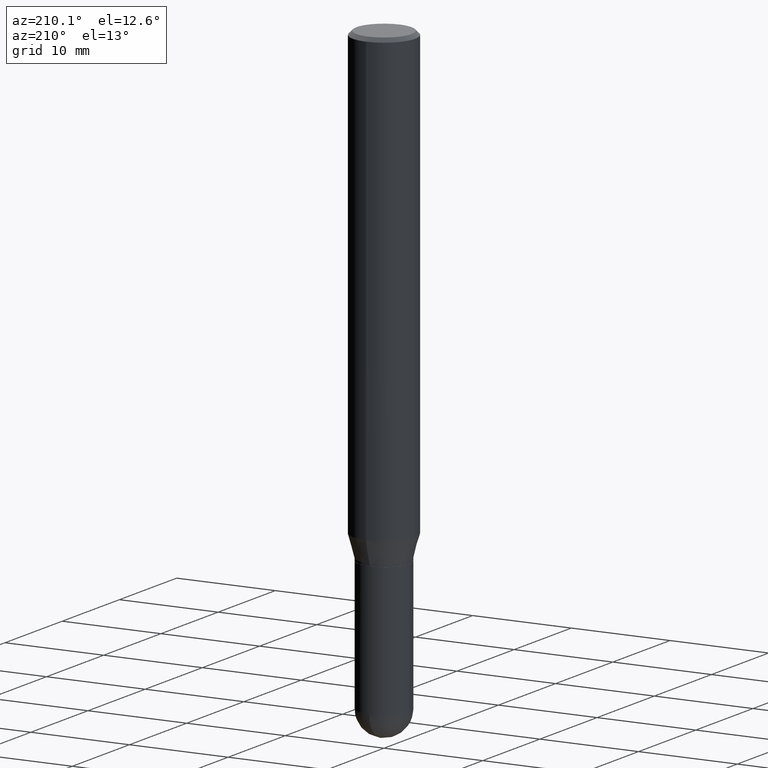
[diagram: clean part render]
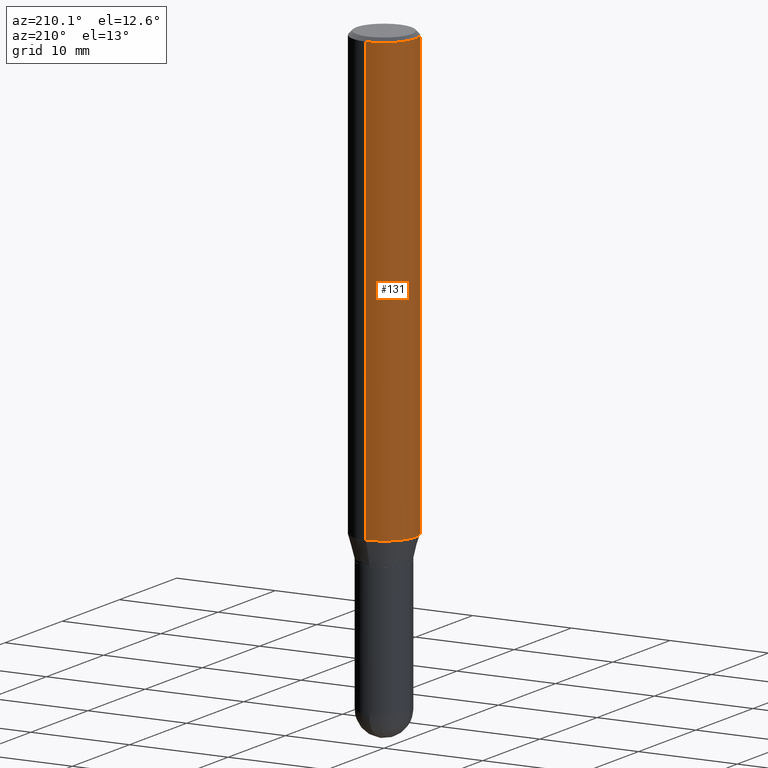
[diagram: same view with one face highlighted and labeled with its STEP entity id]
A machine part, auxiliary view. The second image highlights one B-rep face of the part: STEP entity #131.
In plain terms, the highlighted cylindrical surface (edge-blend (fillet) strip) has radius 3.175 mm, axis along (-0, 0, 1).
Its self-contained STEP definition (entity closure, byte-faithful):
#12 = LINE ( 'NONE', #492, #318 ) ;
#34 = VERTEX_POINT ( 'NONE', #138 ) ;
#38 = VERTEX_POINT ( 'NONE', #451 ) ;
#50 = ORIENTED_EDGE ( 'NONE', *, *, #500, .T. ) ;
#55 = ORIENTED_EDGE ( 'NONE', *, *, #193, .F. ) ;
#61 = AXIS2_PLACEMENT_3D ( 'NONE', #420, #303, #456 ) ;
#70 = CARTESIAN_POINT ( 'NONE',  ( 8.881784197001684225E-16, 0.1249999999999937828, -1.777483408562510858 ) ) ;
#90 = DIRECTION ( 'NONE',  ( -2.445288491507693836E-29, 3.491739559724117490E-15, 1.000000000000000000 ) ) ;
#101 = CARTESIAN_POINT ( 'NONE',  ( 4.346459722803774281E-29, -6.206509134430983691E-15, -1.777483408562510192 ) ) ;
#103 = AXIS2_PLACEMENT_3D ( 'NONE', #101, #90, #184 ) ;
#114 = LINE ( 'NONE', #156, #457 ) ;
#131 = ADVANCED_FACE ( 'NONE', ( #465 ), #346, .T. ) ;
#138 = CARTESIAN_POINT ( 'NONE',  ( 8.881784197001688169E-16, 0.1249999999999999306, -0.01500000000000036027 ) ) ;
#156 = CARTESIAN_POINT ( 'NONE',  ( 8.881784197001251337E-16, 0.1250000000000000000, -4.364674449655146862E-16 ) ) ;
#161 = VERTEX_POINT ( 'NONE', #70 ) ;
#184 = DIRECTION ( 'NONE',  ( -6.982962677686265922E-15, -1.000000000000000000, 4.370956789862821150E-15 ) ) ;
#193 = EDGE_CURVE ( 'NONE', #34, #436, #504, .T. ) ;
#220 = EDGE_CURVE ( 'NONE', #161, #34, #114, .T. ) ;
#250 = ORIENTED_EDGE ( 'NONE', *, *, #220, .F. ) ;
#257 = DIRECTION ( 'NONE',  ( -2.445288491507693556E-29, 3.491739559724117490E-15, 1.000000000000000000 ) ) ;
#261 = DIRECTION ( 'NONE',  ( -6.982962677686265922E-15, -1.000000000000000000, 3.491739559724117490E-15 ) ) ;
#283 = EDGE_LOOP ( 'NONE', ( #250, #330, #50, #55 ) ) ;
#303 = DIRECTION ( 'NONE',  ( -2.445288491507693836E-29, 3.491739559724117490E-15, 1.000000000000000000 ) ) ;
#318 = VECTOR ( 'NONE', #257, 39.37007874015748143 ) ;
#327 = CIRCLE ( 'NONE', #103, 0.1250000000000000000 ) ;
#330 = ORIENTED_EDGE ( 'NONE', *, *, #444, .T. ) ;
#346 = CYLINDRICAL_SURFACE ( 'NONE', #432, 0.1250000000000000000 ) ;
#397 = DIRECTION ( 'NONE',  ( -2.445288491507693556E-29, 3.491739559724117490E-15, 1.000000000000000000 ) ) ;
#420 = CARTESIAN_POINT ( 'NONE',  ( 3.667932737261522064E-31, -5.237609339586149413E-17, -0.01499999999999992312 ) ) ;
#428 = CARTESIAN_POINT ( 'NONE',  ( 0.000000000000000000, 0.000000000000000000, 0.000000000000000000 ) ) ;
#432 = AXIS2_PLACEMENT_3D ( 'NONE', #428, #501, #261 ) ;
#436 = VERTEX_POINT ( 'NONE', #490 ) ;
#444 = EDGE_CURVE ( 'NONE', #161, #38, #327, .T. ) ;
#451 = CARTESIAN_POINT ( 'NONE',  ( -8.728703347107400501E-16, -0.1250000000000062172, -1.777483408562509748 ) ) ;
#456 = DIRECTION ( 'NONE',  ( -6.982962677686265922E-15, -1.000000000000000000, 3.500180241882337261E-15 ) ) ;
#457 = VECTOR ( 'NONE', #397, 39.37007874015748143 ) ;
#465 = FACE_OUTER_BOUND ( 'NONE', #283, .T. ) ;
#490 = CARTESIAN_POINT ( 'NONE',  ( -8.728703347107828458E-16, -0.1250000000000000555, -0.01499999999999948597 ) ) ;
#492 = CARTESIAN_POINT ( 'NONE',  ( -8.728703347107832402E-16, -0.1250000000000000000, 4.364674449655146862E-16 ) ) ;
#500 = EDGE_CURVE ( 'NONE', #38, #436, #12, .T. ) ;
#501 = DIRECTION ( 'NONE',  ( -2.445288491507693836E-29, 3.491739559724117490E-15, 1.000000000000000000 ) ) ;
#504 = CIRCLE ( 'NONE', #61, 0.1250000000000000000 ) ;